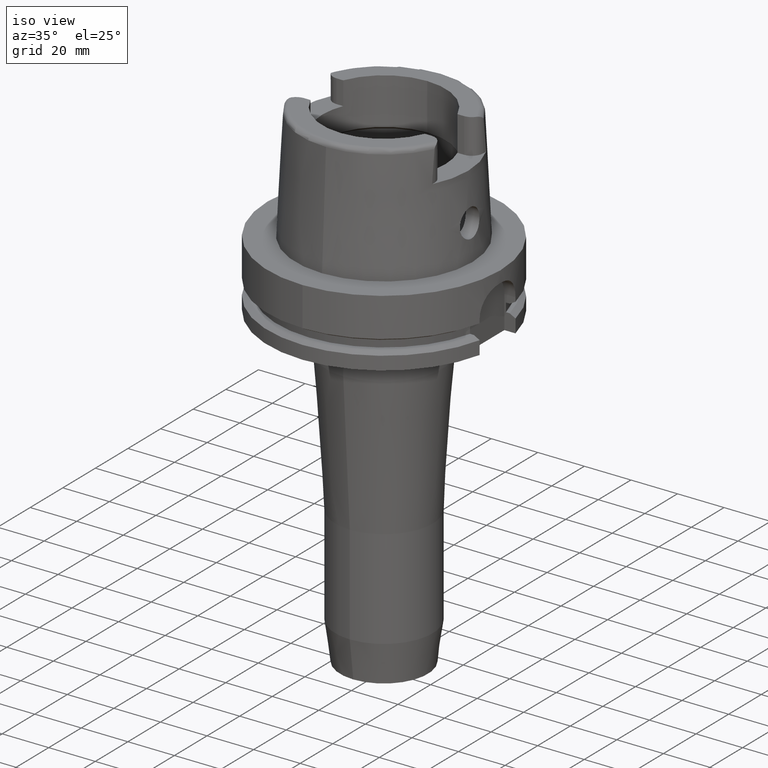
[diagram: clean part render]
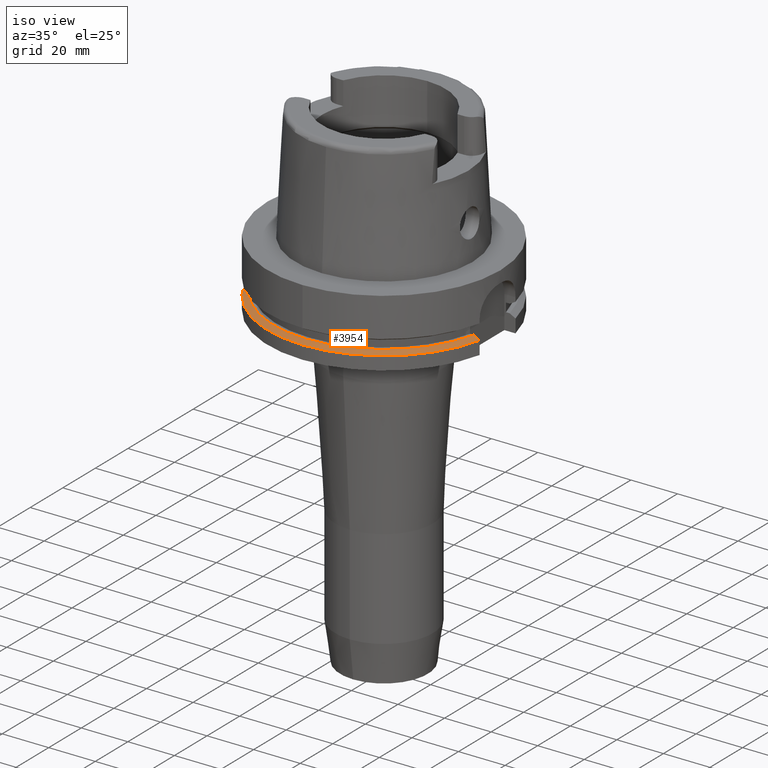
[diagram: same view with one face highlighted and labeled with its STEP entity id]
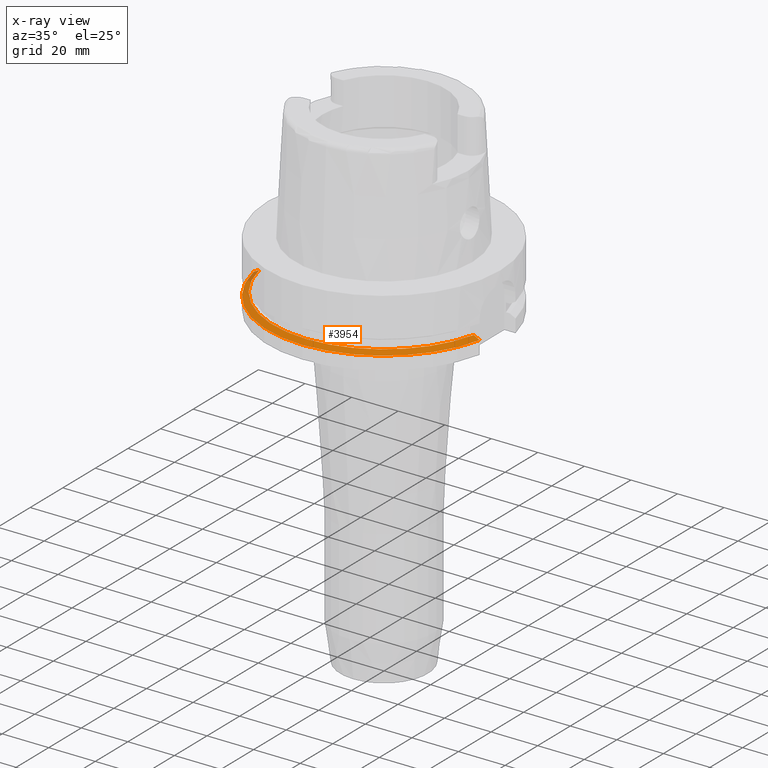
[diagram: x-ray of the same camera — body ghosted, the highlighted face saturated]
A machine part, iso view. The second image highlights one B-rep face of the part: STEP entity #3954.
The next image is the same camera in x-ray: the body ghosted, the highlighted face saturated — about 2% of this face is hidden behind the body in this view.
In plain terms, the highlighted conical surface has half-angle 60 deg.
Its self-contained STEP definition (entity closure, byte-faithful):
#1905=CARTESIAN_POINT('',(0.E0,0.E0,-2.1875E1));
#1906=DIRECTION('',(0.E0,0.E0,-1.E0));
#1907=DIRECTION('',(9.729578356533E-1,-2.309827916554E-1,0.E0));
#1908=AXIS2_PLACEMENT_3D('',#1905,#1906,#1907);
#1913=CARTESIAN_POINT('',(0.E0,0.E0,-2.1875E1));
#1914=DIRECTION('',(0.E0,0.E0,-1.E0));
#1915=DIRECTION('',(0.E0,-1.E0,0.E0));
#1916=AXIS2_PLACEMENT_3D('',#1913,#1914,#1915);
#1921=CARTESIAN_POINT('',(-4.898979485566E1,-1.E1,-2.324759526419E1));
#1922=CARTESIAN_POINT('',(-4.872002593966E1,-1.E1,-2.309499092031E1));
#1923=CARTESIAN_POINT('',(-4.818041161677E1,-1.E1,-2.278984413389E1));
#1924=CARTESIAN_POINT('',(-4.737076227628E1,-1.E1,-2.233230648793E1));
#1925=CARTESIAN_POINT('',(-4.683084020607E1,-1.E1,-2.202741066863E1));
#1926=CARTESIAN_POINT('',(-4.656083740330E1,-1.E1,-2.1875E1));
#1931=CARTESIAN_POINT('',(4.633477721644E1,-1.1E1,-2.1875E1));
#1932=CARTESIAN_POINT('',(4.660605711265E1,-1.1E1,-2.202738808211E1));
#1933=CARTESIAN_POINT('',(4.714851446811E1,-1.1E1,-2.233225649733E1));
#1934=CARTESIAN_POINT('',(4.796191616323E1,-1.1E1,-2.278979543230E1));
#1935=CARTESIAN_POINT('',(4.850399904748E1,-1.1E1,-2.309496975038E1));
#1936=CARTESIAN_POINT('',(4.877499359303E1,-1.1E1,-2.324759526419E1));
#1941=CARTESIAN_POINT('',(0.E0,0.E0,-2.324759526419E1));
#1942=DIRECTION('',(0.E0,0.E0,-1.E0));
#1943=DIRECTION('',(9.754998718606E-1,-2.2E-1,0.E0));
#1944=AXIS2_PLACEMENT_3D('',#1941,#1942,#1943);
#1949=CARTESIAN_POINT('',(0.E0,0.E0,-2.324759526419E1));
#1950=DIRECTION('',(0.E0,0.E0,-1.E0));
#1951=DIRECTION('',(0.E0,-1.E0,0.E0));
#1952=AXIS2_PLACEMENT_3D('',#1949,#1950,#1951);
#2435=CARTESIAN_POINT('',(-4.898979485566E1,-1.E1,-2.324759526419E1));
#2436=VERTEX_POINT('',#2435);
#2437=CARTESIAN_POINT('',(4.877499359303E1,-1.1E1,-2.324759526419E1));
#2438=CARTESIAN_POINT('',(-2.664535259100E-14,-5.E1,-2.324759526419E1));
#2439=VERTEX_POINT('',#2437);
#2440=VERTEX_POINT('',#2438);
#2460=CARTESIAN_POINT('',(-4.656083740330E1,-1.E1,-2.1875E1));
#2461=VERTEX_POINT('',#2460);
#2476=CARTESIAN_POINT('',(3.839522673045E-14,-4.762259526419E1,-2.1875E1));
#2477=VERTEX_POINT('',#2476);
#2478=CARTESIAN_POINT('',(4.633477721644E1,-1.1E1,-2.1875E1));
#2479=VERTEX_POINT('',#2478);
#3941=CARTESIAN_POINT('',(0.E0,0.E0,-2.256129763210E1));
#3942=DIRECTION('',(0.E0,0.E0,-1.E0));
#3943=DIRECTION('',(0.E0,-1.E0,0.E0));
#3944=AXIS2_PLACEMENT_3D('',#3941,#3942,#3943);
#3945=CONICAL_SURFACE('',#3944,4.881129763209E1,6.E1);
#3946=ORIENTED_EDGE('',*,*,#3611,.T.);
#3947=ORIENTED_EDGE('',*,*,#3936,.F.);
#3948=ORIENTED_EDGE('',*,*,#3934,.F.);
#3949=ORIENTED_EDGE('',*,*,#3556,.T.);
#3950=ORIENTED_EDGE('',*,*,#3583,.T.);
#3951=ORIENTED_EDGE('',*,*,#3581,.T.);
#3952=EDGE_LOOP('',(#3946,#3947,#3948,#3949,#3950,#3951));
#3953=FACE_OUTER_BOUND('',#3952,.F.);
#1909=CIRCLE('',#1908,4.762259526419E1);
#1917=CIRCLE('',#1916,4.762259526419E1);
#1927=B_SPLINE_CURVE_WITH_KNOTS('',3,(#1921,#1922,#1923,#1924,#1925,#1926),
.UNSPECIFIED.,.F.,.F.,(4,1,1,4),(0.E0,3.333333333333E-1,6.666666666667E-1,1.E0),
.UNSPECIFIED.);
#1937=B_SPLINE_CURVE_WITH_KNOTS('',3,(#1931,#1932,#1933,#1934,#1935,#1936),
.UNSPECIFIED.,.F.,.F.,(4,1,1,4),(0.E0,3.333333333333E-1,6.666666666667E-1,1.E0),
.UNSPECIFIED.);
#1945=CIRCLE('',#1944,5.E1);
#1953=CIRCLE('',#1952,5.E1);
#3556=EDGE_CURVE('',#2479,#2439,#1937,.T.);
#3581=EDGE_CURVE('',#2440,#2436,#1953,.T.);
#3583=EDGE_CURVE('',#2439,#2440,#1945,.T.);
#3611=EDGE_CURVE('',#2436,#2461,#1927,.T.);
#3934=EDGE_CURVE('',#2479,#2477,#1909,.T.);
#3936=EDGE_CURVE('',#2477,#2461,#1917,.T.);
#3954=ADVANCED_FACE('',(#3953),#3945,.T.);